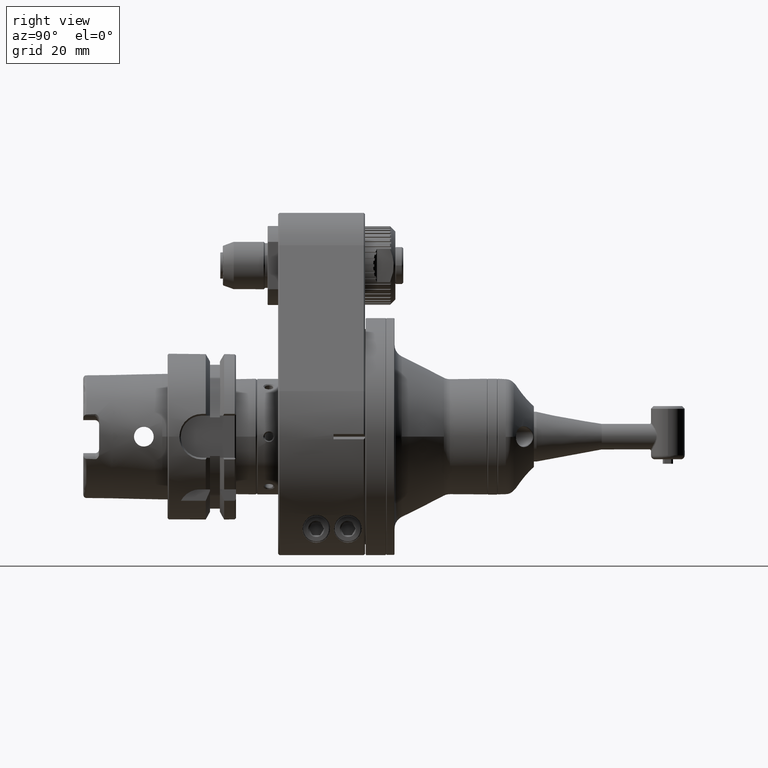
[diagram: clean part render]
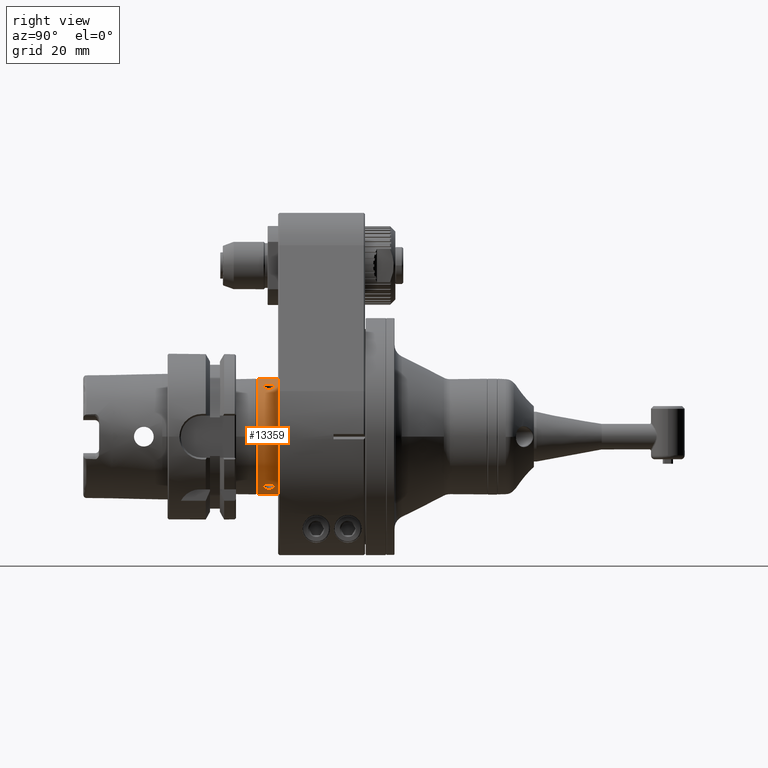
[diagram: same view with one face highlighted and labeled with its STEP entity id]
A machine part, right view. The second image highlights one B-rep face of the part: STEP entity #13359.
In plain terms, the highlighted cylindrical surface (bore or boss wall) has radius 22 mm, axis along (0, 1, 0).
Its self-contained STEP definition (entity closure, byte-faithful):
#243=B_SPLINE_CURVE_WITH_KNOTS('',3,(#28211,#28212,#28213,#28214,#28215,
#28216,#28217,#28218,#28219,#28220,#28221,#28222,#28223,#28224,#28225,#28226,
#28227,#28228),.UNSPECIFIED.,.F.,.F.,(4,2,2,2,2,2,2,2,4),(-1.23880658782033,
-1.16177950065768,-1.08475241349503,-1.00692867718014,-0.929104940865247,
-0.851281204550355,-0.773457468235463,-0.696430381072814,-0.619403293910165),
 .UNSPECIFIED.);
#244=B_SPLINE_CURVE_WITH_KNOTS('',3,(#28229,#28230,#28231,#28232,#28233,
#28234,#28235,#28236,#28237,#28238,#28239,#28240,#28241,#28242,#28243,#28244,
#28245,#28246),.UNSPECIFIED.,.F.,.F.,(4,2,2,2,2,2,2,2,4),(-0.619403293910165,
-0.542376206747516,-0.465349119584866,-0.387525383269974,-0.309701646955082,
-0.23187791064019,-0.154054174325298,-0.0770270871626491,0.),
 .UNSPECIFIED.);
#245=B_SPLINE_CURVE_WITH_KNOTS('',3,(#28249,#28250,#28251,#28252,#28253,
#28254,#28255,#28256,#28257,#28258,#28259,#28260,#28261,#28262,#28263,#28264,
#28265,#28266),.UNSPECIFIED.,.F.,.F.,(4,2,2,2,2,2,2,2,4),(-1.23880658782175,
-1.16177950065902,-1.08475241349629,-1.00692867718131,-0.929104940866334,
-0.85128120455135,-0.773457468236365,-0.696430381073621,-0.619403293910876),
 .UNSPECIFIED.);
#246=B_SPLINE_CURVE_WITH_KNOTS('',3,(#28267,#28268,#28269,#28270,#28271,
#28272,#28273,#28274,#28275,#28276,#28277,#28278,#28279,#28280,#28281,#28282,
#28283,#28284),.UNSPECIFIED.,.F.,.F.,(4,2,2,2,2,2,2,2,4),(-0.619403293910876,
-0.542376206748132,-0.465349119585387,-0.387525383270403,-0.309701646955418,
-0.231877910640439,-0.15405417432546,-0.0770270871627299,0.),
 .UNSPECIFIED.);
#247=B_SPLINE_CURVE_WITH_KNOTS('',3,(#28287,#28288,#28289,#28290,#28291,
#28292,#28293,#28294,#28295,#28296,#28297,#28298,#28299,#28300,#28301,#28302,
#28303,#28304),.UNSPECIFIED.,.F.,.F.,(4,2,2,2,2,2,2,2,4),(-1.23880658781887,
-1.1617795006563,-1.08475241349373,-1.00692867717893,-0.929104940864128,
-0.851281204549332,-0.773457468234535,-0.696430381071984,-0.619403293909433),
 .UNSPECIFIED.);
#248=B_SPLINE_CURVE_WITH_KNOTS('',3,(#28305,#28306,#28307,#28308,#28309,
#28310,#28311,#28312,#28313,#28314,#28315,#28316,#28317,#28318,#28319,#28320,
#28321,#28322),.UNSPECIFIED.,.F.,.F.,(4,2,2,2,2,2,2,2,4),(-0.619403293909433,
-0.542376206746882,-0.465349119584331,-0.387525383269534,-0.309701646954737,
-0.231877910639935,-0.154054174325132,-0.0770270871625662,0.),
 .UNSPECIFIED.);
#249=B_SPLINE_CURVE_WITH_KNOTS('',3,(#28325,#28326,#28327,#28328,#28329,
#28330,#28331,#28332,#28333,#28334,#28335,#28336,#28337,#28338,#28339,#28340,
#28341,#28342),.UNSPECIFIED.,.F.,.F.,(4,2,2,2,2,2,2,2,4),(-1.23880658782032,
-1.16177950065767,-1.08475241349502,-1.00692867718013,-0.929104940865237,
-0.851281204550345,-0.773457468235454,-0.696430381072806,-0.619403293910157),
 .UNSPECIFIED.);
#250=B_SPLINE_CURVE_WITH_KNOTS('',3,(#28343,#28344,#28345,#28346,#28347,
#28348,#28349,#28350,#28351,#28352,#28353,#28354,#28355,#28356,#28357,#28358,
#28359,#28360),.UNSPECIFIED.,.F.,.F.,(4,2,2,2,2,2,2,2,4),(-0.619403293910157,
-0.542376206747509,-0.465349119584861,-0.38752538326997,-0.309701646955079,
-0.231877910640188,-0.154054174325297,-0.0770270871626483,0.),
 .UNSPECIFIED.);
#251=B_SPLINE_CURVE_WITH_KNOTS('',3,(#28363,#28364,#28365,#28366,#28367,
#28368,#28369,#28370,#28371,#28372,#28373,#28374,#28375,#28376,#28377,#28378,
#28379,#28380),.UNSPECIFIED.,.F.,.F.,(4,2,2,2,2,2,2,2,4),(-1.23880658781886,
-1.16177950065629,-1.08475241349373,-1.00692867717893,-0.929104940864124,
-0.851281204549328,-0.773457468234531,-0.696430381071981,-0.61940329390943),
 .UNSPECIFIED.);
#252=B_SPLINE_CURVE_WITH_KNOTS('',3,(#28381,#28382,#28383,#28384,#28385,
#28386,#28387,#28388,#28389,#28390,#28391,#28392,#28393,#28394,#28395,#28396,
#28397,#28398),.UNSPECIFIED.,.F.,.F.,(4,2,2,2,2,2,2,2,4),(-0.61940329390943,
-0.542376206746879,-0.465349119584328,-0.387525383269532,-0.309701646954735,
-0.231877910639933,-0.154054174325132,-0.0770270871625658,0.),
 .UNSPECIFIED.);
#253=B_SPLINE_CURVE_WITH_KNOTS('',3,(#28401,#28402,#28403,#28404,#28405,
#28406,#28407,#28408,#28409,#28410,#28411,#28412,#28413,#28414,#28415,#28416,
#28417,#28418),.UNSPECIFIED.,.F.,.F.,(4,2,2,2,2,2,2,2,4),(-1.23880658782176,
-1.16177950065903,-1.0847524134963,-1.00692867718132,-0.929104940866339,
-0.851281204551354,-0.773457468236369,-0.696430381073624,-0.619403293910879),
 .UNSPECIFIED.);
#254=B_SPLINE_CURVE_WITH_KNOTS('',3,(#28419,#28420,#28421,#28422,#28423,
#28424,#28425,#28426,#28427,#28428,#28429,#28430,#28431,#28432,#28433,#28434,
#28435,#28436),.UNSPECIFIED.,.F.,.F.,(4,2,2,2,2,2,2,2,4),(-0.619403293910879,
-0.542376206748134,-0.465349119585389,-0.387525383270404,-0.309701646955419,
-0.231877910640439,-0.15405417432546,-0.0770270871627301,0.),
 .UNSPECIFIED.);
#1338=LINE('',#28205,#2313);
#2313=VECTOR('',#18233,22.);
#2608=CYLINDRICAL_SURFACE('',#14724,22.);
#2737=FACE_BOUND('',#4216,.T.);
#2738=FACE_BOUND('',#4217,.T.);
#2739=FACE_BOUND('',#4218,.T.);
#2740=FACE_BOUND('',#4219,.T.);
#2741=FACE_BOUND('',#4220,.T.);
#2742=FACE_BOUND('',#4221,.T.);
#3374=FACE_OUTER_BOUND('',#4215,.T.);
#4215=EDGE_LOOP('',(#11582,#11583,#11584,#11585,#11586));
#4216=EDGE_LOOP('',(#11587,#11588));
#4217=EDGE_LOOP('',(#11589,#11590));
#4218=EDGE_LOOP('',(#11591,#11592));
#4219=EDGE_LOOP('',(#11593,#11594));
#4220=EDGE_LOOP('',(#11595,#11596));
#4221=EDGE_LOOP('',(#11597,#11598));
#4915=CIRCLE('',#14643,22.);
#4956=CIRCLE('',#14725,22.);
#4957=CIRCLE('',#14726,22.);
#6071=VERTEX_POINT('',#27106);
#6132=VERTEX_POINT('',#28204);
#6133=VERTEX_POINT('',#28206);
#6134=VERTEX_POINT('',#28209);
#6135=VERTEX_POINT('',#28210);
#6136=VERTEX_POINT('',#28247);
#6137=VERTEX_POINT('',#28248);
#6138=VERTEX_POINT('',#28285);
#6139=VERTEX_POINT('',#28286);
#6140=VERTEX_POINT('',#28323);
#6141=VERTEX_POINT('',#28324);
#6142=VERTEX_POINT('',#28361);
#6143=VERTEX_POINT('',#28362);
#6144=VERTEX_POINT('',#28399);
#6145=VERTEX_POINT('',#28400);
#7887=EDGE_CURVE('',#6071,#6071,#4915,.T.);
#7983=EDGE_CURVE('',#6071,#6132,#1338,.T.);
#7984=EDGE_CURVE('',#6132,#6133,#4956,.T.);
#7985=EDGE_CURVE('',#6133,#6132,#4957,.T.);
#7986=EDGE_CURVE('',#6134,#6135,#243,.T.);
#7987=EDGE_CURVE('',#6135,#6134,#244,.T.);
#7988=EDGE_CURVE('',#6136,#6137,#245,.T.);
#7989=EDGE_CURVE('',#6137,#6136,#246,.T.);
#7990=EDGE_CURVE('',#6138,#6139,#247,.T.);
#7991=EDGE_CURVE('',#6139,#6138,#248,.T.);
#7992=EDGE_CURVE('',#6140,#6141,#249,.T.);
#7993=EDGE_CURVE('',#6141,#6140,#250,.T.);
#7994=EDGE_CURVE('',#6142,#6143,#251,.T.);
#7995=EDGE_CURVE('',#6143,#6142,#252,.T.);
#7996=EDGE_CURVE('',#6144,#6145,#253,.T.);
#7997=EDGE_CURVE('',#6145,#6144,#254,.T.);
#11582=ORIENTED_EDGE('',*,*,#7887,.F.);
#11583=ORIENTED_EDGE('',*,*,#7983,.T.);
#11584=ORIENTED_EDGE('',*,*,#7984,.T.);
#11585=ORIENTED_EDGE('',*,*,#7985,.T.);
#11586=ORIENTED_EDGE('',*,*,#7983,.F.);
#11587=ORIENTED_EDGE('',*,*,#7986,.F.);
#11588=ORIENTED_EDGE('',*,*,#7987,.F.);
#11589=ORIENTED_EDGE('',*,*,#7988,.F.);
#11590=ORIENTED_EDGE('',*,*,#7989,.F.);
#11591=ORIENTED_EDGE('',*,*,#7990,.F.);
#11592=ORIENTED_EDGE('',*,*,#7991,.F.);
#11593=ORIENTED_EDGE('',*,*,#7992,.F.);
#11594=ORIENTED_EDGE('',*,*,#7993,.F.);
#11595=ORIENTED_EDGE('',*,*,#7994,.F.);
#11596=ORIENTED_EDGE('',*,*,#7995,.F.);
#11597=ORIENTED_EDGE('',*,*,#7996,.F.);
#11598=ORIENTED_EDGE('',*,*,#7997,.F.);
#13359=ADVANCED_FACE('',(#3374,#2737,#2738,#2739,#2740,#2741,#2742),#2608,
 .T.);
#14643=AXIS2_PLACEMENT_3D('',#27107,#18029,#18030);
#14724=AXIS2_PLACEMENT_3D('',#28203,#18231,#18232);
#14725=AXIS2_PLACEMENT_3D('',#28207,#18234,#18235);
#14726=AXIS2_PLACEMENT_3D('',#28208,#18236,#18237);
#18029=DIRECTION('center_axis',(0.,1.,0.));
#18030=DIRECTION('ref_axis',(0.866025403784429,0.,0.500000000000017));
#18231=DIRECTION('center_axis',(0.,1.,0.));
#18232=DIRECTION('ref_axis',(0.866025403784429,0.,0.500000000000017));
#18233=DIRECTION('',(0.,-1.,0.));
#18234=DIRECTION('center_axis',(0.,1.,0.));
#18235=DIRECTION('ref_axis',(0.866025403784429,0.,0.500000000000017));
#18236=DIRECTION('center_axis',(0.,1.,0.));
#18237=DIRECTION('ref_axis',(0.866025403784429,0.,0.500000000000017));
#27106=CARTESIAN_POINT('',(-19.0525588832575,-8.,-11.0000000000004));
#27107=CARTESIAN_POINT('Origin',(-1.091779395535E-14,-8.,0.));
#28203=CARTESIAN_POINT('Origin',(-1.19893599046E-14,-16.75,0.));
#28204=CARTESIAN_POINT('',(-19.0525588832575,-15.80000880155,-11.0000000000004));
#28205=CARTESIAN_POINT('',(-19.0525588832575,-16.75,-11.0000000000004));
#28206=CARTESIAN_POINT('',(19.05255888326,-15.80000880155,11.));
#28207=CARTESIAN_POINT('Origin',(-1.187301953656E-14,-15.80000880155,0.));
#28208=CARTESIAN_POINT('Origin',(-1.187301953656E-14,-15.80000880155,0.));
#28209=CARTESIAN_POINT('',(-21.90815621239,-11.5,-2.008156212393));
#28210=CARTESIAN_POINT('',(-21.9081562123931,-11.5,2.00815621239513));
#28211=CARTESIAN_POINT('Ctrl Pts',(-21.9081562123931,-11.5,-2.00815621239512));
#28212=CARTESIAN_POINT('Ctrl Pts',(-21.9081562123931,-11.7567569572088,
-2.00815621239512));
#28213=CARTESIAN_POINT('Ctrl Pts',(-21.9127106482679,-12.0317418716678,
-1.96033448796461));
#28214=CARTESIAN_POINT('Ctrl Pts',(-21.929464605579,-12.5416340439563,-1.76306033544302));
#28215=CARTESIAN_POINT('Ctrl Pts',(-21.9414458850126,-12.7765352915585,
-1.61357389995943));
#28216=CARTESIAN_POINT('Ctrl Pts',(-21.9644709021388,-13.1540082290924,
-1.26226934337229));
#28217=CARTESIAN_POINT('Ctrl Pts',(-21.9770299134931,-13.3210366099234,
-1.03589907620425));
#28218=CARTESIAN_POINT('Ctrl Pts',(-21.9949367380513,-13.5440839504429,
-0.534498578998472));
#28219=CARTESIAN_POINT('Ctrl Pts',(-22.,-13.600000000002,-0.259412454382973));
#28220=CARTESIAN_POINT('Ctrl Pts',(-22.,-13.600000000002,0.259412454382974));
#28221=CARTESIAN_POINT('Ctrl Pts',(-21.9949367380513,-13.5440839504429,
0.534498578998472));
#28222=CARTESIAN_POINT('Ctrl Pts',(-21.9770299134931,-13.3210366099234,
1.03589907620424));
#28223=CARTESIAN_POINT('Ctrl Pts',(-21.9644709021388,-13.1540082290924,
1.26226934337229));
#28224=CARTESIAN_POINT('Ctrl Pts',(-21.9414458850126,-12.7765352915585,
1.61357389995943));
#28225=CARTESIAN_POINT('Ctrl Pts',(-21.929464605579,-12.5416340439563,1.76306033544302));
#28226=CARTESIAN_POINT('Ctrl Pts',(-21.9127106482679,-12.0317418716678,
1.96033448796461));
#28227=CARTESIAN_POINT('Ctrl Pts',(-21.9081562123931,-11.7567569572088,
2.00815621239513));
#28228=CARTESIAN_POINT('Ctrl Pts',(-21.9081562123931,-11.5,2.00815621239513));
#28229=CARTESIAN_POINT('Ctrl Pts',(-21.9081562123931,-11.5,2.00815621239513));
#28230=CARTESIAN_POINT('Ctrl Pts',(-21.9081562123931,-11.2432430427912,
2.00815621239513));
#28231=CARTESIAN_POINT('Ctrl Pts',(-21.9127106482679,-10.9682581283322,
1.96033448796461));
#28232=CARTESIAN_POINT('Ctrl Pts',(-21.929464605579,-10.4583659560437,1.76306033544302));
#28233=CARTESIAN_POINT('Ctrl Pts',(-21.9414458850126,-10.2234647084415,
1.61357389995943));
#28234=CARTESIAN_POINT('Ctrl Pts',(-21.9644709021388,-9.84599177090757,
1.26226934337229));
#28235=CARTESIAN_POINT('Ctrl Pts',(-21.9770299134931,-9.67896339007665,
1.03589907620425));
#28236=CARTESIAN_POINT('Ctrl Pts',(-21.9949367380513,-9.45591604955709,
0.534498578998473));
#28237=CARTESIAN_POINT('Ctrl Pts',(-22.,-9.39999999999799,0.259412454382973));
#28238=CARTESIAN_POINT('Ctrl Pts',(-22.,-9.39999999999799,-0.259412454382974));
#28239=CARTESIAN_POINT('Ctrl Pts',(-21.9949367380513,-9.45591604955709,
-0.534498578998474));
#28240=CARTESIAN_POINT('Ctrl Pts',(-21.9770299134931,-9.67896339007665,
-1.03589907620425));
#28241=CARTESIAN_POINT('Ctrl Pts',(-21.9644709021388,-9.84599177090757,
-1.26226934337229));
#28242=CARTESIAN_POINT('Ctrl Pts',(-21.9414458850126,-10.2234647084415,
-1.61357389995943));
#28243=CARTESIAN_POINT('Ctrl Pts',(-21.929464605579,-10.4583659560437,-1.76306033544302));
#28244=CARTESIAN_POINT('Ctrl Pts',(-21.9127106482679,-10.9682581283322,
-1.96033448796461));
#28245=CARTESIAN_POINT('Ctrl Pts',(-21.9081562123931,-11.2432430427912,
-2.00815621239513));
#28246=CARTESIAN_POINT('Ctrl Pts',(-21.9081562123931,-11.5,-2.00815621239513));
#28247=CARTESIAN_POINT('',(9.214963811497,-11.5,19.97709793621));
#28248=CARTESIAN_POINT('',(12.6931924008986,-11.5,17.9689417238125));
#28249=CARTESIAN_POINT('Ctrl Pts',(9.21496381149112,-11.5,19.9770979362096));
#28250=CARTESIAN_POINT('Ctrl Pts',(9.21496381149112,-11.7567569572091,19.9770979362096));
#28251=CARTESIAN_POINT('Ctrl Pts',(9.25865585763816,-12.0317418716684,19.9571313311618));
#28252=CARTESIAN_POINT('Ctrl Pts',(9.43787726388764,-12.5416340439574,19.8730036075463));
#28253=CARTESIAN_POINT('Ctrl Pts',(9.57332695425452,-12.7765352915599,19.8086364821637));
#28254=CARTESIAN_POINT('Ctrl Pts',(9.88907813328764,-13.1540082290942,19.6529244536239));
#28255=CARTESIAN_POINT('Ctrl Pts',(10.091400040994,-13.3210366099254,19.5506157429191));
#28256=CARTESIAN_POINT('Ctrl Pts',(10.534579021324,-13.5440839504453,19.3154232592846));
#28257=CARTESIAN_POINT('Ctrl Pts',(10.7753422244443,-13.6000000000044,19.1822651104503));
#28258=CARTESIAN_POINT('Ctrl Pts',(11.2246577755522,-13.6000000000045,18.922852656067));
#28259=CARTESIAN_POINT('Ctrl Pts',(11.4603577167238,-13.5440839504454,18.7809246802856));
#28260=CARTESIAN_POINT('Ctrl Pts',(11.8856298724956,-13.3210366099256,18.5147166667138));
#28261=CARTESIAN_POINT('Ctrl Pts',(12.0753927688477,-13.1540082290945,18.3906551102504));
#28262=CARTESIAN_POINT('Ctrl Pts',(12.3681189307546,-12.7765352915601,18.1950625822027));
#28263=CARTESIAN_POINT('Ctrl Pts',(12.491587341688,-12.5416340439576,18.1099432721015));
#28264=CARTESIAN_POINT('Ctrl Pts',(12.6540547906264,-12.0317418716685,17.9967968431953));
#28265=CARTESIAN_POINT('Ctrl Pts',(12.6931924008986,-11.7567569572091,17.9689417238125));
#28266=CARTESIAN_POINT('Ctrl Pts',(12.6931924008986,-11.5,17.9689417238125));
#28267=CARTESIAN_POINT('Ctrl Pts',(12.6931924008986,-11.5,17.9689417238125));
#28268=CARTESIAN_POINT('Ctrl Pts',(12.6931924008986,-11.2432430427908,17.9689417238125));
#28269=CARTESIAN_POINT('Ctrl Pts',(12.6540547906264,-10.9682581283315,17.9967968431953));
#28270=CARTESIAN_POINT('Ctrl Pts',(12.491587341688,-10.4583659560424,18.1099432721015));
#28271=CARTESIAN_POINT('Ctrl Pts',(12.3681189307546,-10.2234647084399,18.1950625822027));
#28272=CARTESIAN_POINT('Ctrl Pts',(12.0753927688477,-9.84599177090555,18.3906551102504));
#28273=CARTESIAN_POINT('Ctrl Pts',(11.8856298724956,-9.67896339007444,18.5147166667138));
#28274=CARTESIAN_POINT('Ctrl Pts',(11.4603577167238,-9.45591604955464,18.7809246802856));
#28275=CARTESIAN_POINT('Ctrl Pts',(11.2246577755522,-9.3999999999955,18.922852656067));
#28276=CARTESIAN_POINT('Ctrl Pts',(10.7753422244443,-9.39999999999556,19.1822651104503));
#28277=CARTESIAN_POINT('Ctrl Pts',(10.534579021324,-9.45591604955475,19.3154232592846));
#28278=CARTESIAN_POINT('Ctrl Pts',(10.091400040994,-9.67896339007462,19.5506157429191));
#28279=CARTESIAN_POINT('Ctrl Pts',(9.88907813328764,-9.84599177090576,19.6529244536239));
#28280=CARTESIAN_POINT('Ctrl Pts',(9.57332695425452,-10.2234647084401,19.8086364821637));
#28281=CARTESIAN_POINT('Ctrl Pts',(9.43787726388764,-10.4583659560426,19.8730036075463));
#28282=CARTESIAN_POINT('Ctrl Pts',(9.25865585763816,-10.9682581283316,19.9571313311618));
#28283=CARTESIAN_POINT('Ctrl Pts',(9.21496381149112,-11.2432430427909,19.9770979362096));
#28284=CARTESIAN_POINT('Ctrl Pts',(9.21496381149112,-11.5,19.9770979362096));
#28285=CARTESIAN_POINT('',(-12.6931924009,-11.5,17.96894172381));
#28286=CARTESIAN_POINT('',(-9.21496381149529,-11.5,19.9770979362077));
#28287=CARTESIAN_POINT('Ctrl Pts',(-12.6931924008949,-11.5,17.9689417238151));
#28288=CARTESIAN_POINT('Ctrl Pts',(-12.6931924008949,-11.7567569572086,
17.9689417238151));
#28289=CARTESIAN_POINT('Ctrl Pts',(-12.6540547906227,-12.0317418716672,
17.9967968431978));
#28290=CARTESIAN_POINT('Ctrl Pts',(-12.4915873416846,-12.5416340439552,
18.1099432721038));
#28291=CARTESIAN_POINT('Ctrl Pts',(-12.3681189307515,-12.7765352915571,
18.1950625822048));
#28292=CARTESIAN_POINT('Ctrl Pts',(-12.0753927688452,-13.1540082290906,
18.390655110252));
#28293=CARTESIAN_POINT('Ctrl Pts',(-11.8856298724936,-13.3210366099213,
18.5147166667151));
#28294=CARTESIAN_POINT('Ctrl Pts',(-11.4603577167228,-13.5440839504405,
18.7809246802862));
#28295=CARTESIAN_POINT('Ctrl Pts',(-11.2246577755517,-13.5999999999995,
18.9228526560674));
#28296=CARTESIAN_POINT('Ctrl Pts',(-10.7753422244448,-13.5999999999995,
19.18226511045));
#28297=CARTESIAN_POINT('Ctrl Pts',(-10.5345790213251,-13.5440839504404,
19.315423259284));
#28298=CARTESIAN_POINT('Ctrl Pts',(-10.0914000409962,-13.3210366099211,
19.550615742918));
#28299=CARTESIAN_POINT('Ctrl Pts',(-9.88907813329026,-13.1540082290904,
19.6529244536226));
#28300=CARTESIAN_POINT('Ctrl Pts',(-9.57332695425787,-12.7765352915569,
19.8086364821621));
#28301=CARTESIAN_POINT('Ctrl Pts',(-9.4378772638913,-12.541634043955,19.8730036075446));
#28302=CARTESIAN_POINT('Ctrl Pts',(-9.25865585764223,-12.0317418716671,
19.9571313311599));
#28303=CARTESIAN_POINT('Ctrl Pts',(-9.21496381149529,-11.7567569572085,
19.9770979362077));
#28304=CARTESIAN_POINT('Ctrl Pts',(-9.21496381149529,-11.5,19.9770979362077));
#28305=CARTESIAN_POINT('Ctrl Pts',(-9.21496381149529,-11.5,19.9770979362077));
#28306=CARTESIAN_POINT('Ctrl Pts',(-9.21496381149529,-11.2432430427915,
19.9770979362077));
#28307=CARTESIAN_POINT('Ctrl Pts',(-9.25865585764223,-10.9682581283329,
19.9571313311599));
#28308=CARTESIAN_POINT('Ctrl Pts',(-9.4378772638913,-10.458365956045,19.8730036075446));
#28309=CARTESIAN_POINT('Ctrl Pts',(-9.57332695425786,-10.2234647084431,
19.8086364821621));
#28310=CARTESIAN_POINT('Ctrl Pts',(-9.88907813329026,-9.84599177090965,
19.6529244536226));
#28311=CARTESIAN_POINT('Ctrl Pts',(-10.0914000409962,-9.67896339007892,
19.550615742918));
#28312=CARTESIAN_POINT('Ctrl Pts',(-10.5345790213251,-9.4559160495596,19.315423259284));
#28313=CARTESIAN_POINT('Ctrl Pts',(-10.7753422244448,-9.40000000000055,
19.18226511045));
#28314=CARTESIAN_POINT('Ctrl Pts',(-11.2246577755517,-9.40000000000049,
18.9228526560674));
#28315=CARTESIAN_POINT('Ctrl Pts',(-11.4603577167228,-9.45591604955949,
18.7809246802862));
#28316=CARTESIAN_POINT('Ctrl Pts',(-11.8856298724936,-9.67896339007873,
18.5147166667151));
#28317=CARTESIAN_POINT('Ctrl Pts',(-12.0753927688452,-9.84599177090943,
18.390655110252));
#28318=CARTESIAN_POINT('Ctrl Pts',(-12.3681189307515,-10.2234647084429,
18.1950625822048));
#28319=CARTESIAN_POINT('Ctrl Pts',(-12.4915873416846,-10.4583659560448,
18.1099432721038));
#28320=CARTESIAN_POINT('Ctrl Pts',(-12.6540547906227,-10.9682581283328,
17.9967968431978));
#28321=CARTESIAN_POINT('Ctrl Pts',(-12.6931924008949,-11.2432430427914,
17.9689417238151));
#28322=CARTESIAN_POINT('Ctrl Pts',(-12.6931924008949,-11.5,17.9689417238151));
#28323=CARTESIAN_POINT('',(21.90815621239,-11.5,2.008156212393));
#28324=CARTESIAN_POINT('',(21.9081562123931,-11.5,-2.0081562123951));
#28325=CARTESIAN_POINT('Ctrl Pts',(21.9081562123931,-11.5,2.0081562123951));
#28326=CARTESIAN_POINT('Ctrl Pts',(21.9081562123931,-11.7567569572088,2.0081562123951));
#28327=CARTESIAN_POINT('Ctrl Pts',(21.9127106482679,-12.0317418716678,1.96033448796459));
#28328=CARTESIAN_POINT('Ctrl Pts',(21.929464605579,-12.5416340439563,1.763060335443));
#28329=CARTESIAN_POINT('Ctrl Pts',(21.9414458850125,-12.7765352915585,1.61357389995941));
#28330=CARTESIAN_POINT('Ctrl Pts',(21.9644709021388,-13.1540082290924,1.26226934337228));
#28331=CARTESIAN_POINT('Ctrl Pts',(21.9770299134931,-13.3210366099233,1.03589907620424));
#28332=CARTESIAN_POINT('Ctrl Pts',(21.9949367380513,-13.5440839504429,0.534498578998467));
#28333=CARTESIAN_POINT('Ctrl Pts',(22.,-13.600000000002,0.259412454382971));
#28334=CARTESIAN_POINT('Ctrl Pts',(22.,-13.600000000002,-0.259412454382971));
#28335=CARTESIAN_POINT('Ctrl Pts',(21.9949367380513,-13.5440839504429,-0.534498578998469));
#28336=CARTESIAN_POINT('Ctrl Pts',(21.9770299134931,-13.3210366099233,-1.03589907620424));
#28337=CARTESIAN_POINT('Ctrl Pts',(21.9644709021388,-13.1540082290924,-1.26226934337228));
#28338=CARTESIAN_POINT('Ctrl Pts',(21.9414458850125,-12.7765352915585,-1.61357389995941));
#28339=CARTESIAN_POINT('Ctrl Pts',(21.929464605579,-12.5416340439563,-1.763060335443));
#28340=CARTESIAN_POINT('Ctrl Pts',(21.9127106482679,-12.0317418716678,-1.96033448796459));
#28341=CARTESIAN_POINT('Ctrl Pts',(21.9081562123931,-11.7567569572088,-2.0081562123951));
#28342=CARTESIAN_POINT('Ctrl Pts',(21.9081562123931,-11.5,-2.0081562123951));
#28343=CARTESIAN_POINT('Ctrl Pts',(21.9081562123931,-11.5,-2.0081562123951));
#28344=CARTESIAN_POINT('Ctrl Pts',(21.9081562123931,-11.2432430427912,-2.0081562123951));
#28345=CARTESIAN_POINT('Ctrl Pts',(21.9127106482679,-10.9682581283322,-1.96033448796458));
#28346=CARTESIAN_POINT('Ctrl Pts',(21.929464605579,-10.4583659560437,-1.763060335443));
#28347=CARTESIAN_POINT('Ctrl Pts',(21.9414458850125,-10.2234647084415,-1.61357389995941));
#28348=CARTESIAN_POINT('Ctrl Pts',(21.9644709021388,-9.84599177090759,-1.26226934337228));
#28349=CARTESIAN_POINT('Ctrl Pts',(21.9770299134931,-9.67896339007667,-1.03589907620423));
#28350=CARTESIAN_POINT('Ctrl Pts',(21.9949367380513,-9.45591604955711,-0.534498578998466));
#28351=CARTESIAN_POINT('Ctrl Pts',(22.,-9.39999999999802,-0.25941245438297));
#28352=CARTESIAN_POINT('Ctrl Pts',(22.,-9.39999999999802,0.25941245438297));
#28353=CARTESIAN_POINT('Ctrl Pts',(21.9949367380513,-9.45591604955711,0.534498578998466));
#28354=CARTESIAN_POINT('Ctrl Pts',(21.9770299134931,-9.67896339007667,1.03589907620423));
#28355=CARTESIAN_POINT('Ctrl Pts',(21.9644709021388,-9.84599177090759,1.26226934337228));
#28356=CARTESIAN_POINT('Ctrl Pts',(21.9414458850125,-10.2234647084415,1.61357389995941));
#28357=CARTESIAN_POINT('Ctrl Pts',(21.929464605579,-10.4583659560437,1.763060335443));
#28358=CARTESIAN_POINT('Ctrl Pts',(21.9127106482679,-10.9682581283322,1.96033448796458));
#28359=CARTESIAN_POINT('Ctrl Pts',(21.9081562123931,-11.2432430427912,2.0081562123951));
#28360=CARTESIAN_POINT('Ctrl Pts',(21.9081562123931,-11.5,2.0081562123951));
#28361=CARTESIAN_POINT('',(12.6931924009,-11.5,-17.96894172381));
#28362=CARTESIAN_POINT('',(9.21496381149529,-11.5,-19.9770979362076));
#28363=CARTESIAN_POINT('Ctrl Pts',(12.6931924008949,-11.5,-17.9689417238151));
#28364=CARTESIAN_POINT('Ctrl Pts',(12.6931924008949,-11.7567569572086,-17.9689417238151));
#28365=CARTESIAN_POINT('Ctrl Pts',(12.6540547906227,-12.0317418716672,-17.9967968431978));
#28366=CARTESIAN_POINT('Ctrl Pts',(12.4915873416846,-12.5416340439552,-18.1099432721038));
#28367=CARTESIAN_POINT('Ctrl Pts',(12.3681189307515,-12.7765352915571,-18.1950625822048));
#28368=CARTESIAN_POINT('Ctrl Pts',(12.0753927688452,-13.1540082290906,-18.390655110252));
#28369=CARTESIAN_POINT('Ctrl Pts',(11.8856298724936,-13.3210366099213,-18.5147166667151));
#28370=CARTESIAN_POINT('Ctrl Pts',(11.4603577167228,-13.5440839504405,-18.7809246802862));
#28371=CARTESIAN_POINT('Ctrl Pts',(11.2246577755517,-13.5999999999995,-18.9228526560673));
#28372=CARTESIAN_POINT('Ctrl Pts',(10.7753422244448,-13.5999999999994,-19.18226511045));
#28373=CARTESIAN_POINT('Ctrl Pts',(10.5345790213251,-13.5440839504404,-19.315423259284));
#28374=CARTESIAN_POINT('Ctrl Pts',(10.0914000409962,-13.3210366099211,-19.550615742918));
#28375=CARTESIAN_POINT('Ctrl Pts',(9.88907813329026,-13.1540082290903,-19.6529244536226));
#28376=CARTESIAN_POINT('Ctrl Pts',(9.57332695425787,-12.7765352915569,-19.8086364821621));
#28377=CARTESIAN_POINT('Ctrl Pts',(9.4378772638913,-12.541634043955,-19.8730036075445));
#28378=CARTESIAN_POINT('Ctrl Pts',(9.25865585764224,-12.0317418716671,-19.9571313311599));
#28379=CARTESIAN_POINT('Ctrl Pts',(9.21496381149529,-11.7567569572085,-19.9770979362076));
#28380=CARTESIAN_POINT('Ctrl Pts',(9.21496381149529,-11.5,-19.9770979362076));
#28381=CARTESIAN_POINT('Ctrl Pts',(9.21496381149529,-11.5,-19.9770979362076));
#28382=CARTESIAN_POINT('Ctrl Pts',(9.21496381149529,-11.2432430427915,-19.9770979362076));
#28383=CARTESIAN_POINT('Ctrl Pts',(9.25865585764224,-10.9682581283329,-19.9571313311599));
#28384=CARTESIAN_POINT('Ctrl Pts',(9.4378772638913,-10.458365956045,-19.8730036075445));
#28385=CARTESIAN_POINT('Ctrl Pts',(9.57332695425787,-10.2234647084431,-19.8086364821621));
#28386=CARTESIAN_POINT('Ctrl Pts',(9.88907813329026,-9.84599177090966,-19.6529244536226));
#28387=CARTESIAN_POINT('Ctrl Pts',(10.0914000409962,-9.67896339007893,-19.550615742918));
#28388=CARTESIAN_POINT('Ctrl Pts',(10.5345790213251,-9.45591604955961,-19.315423259284));
#28389=CARTESIAN_POINT('Ctrl Pts',(10.7753422244448,-9.40000000000056,-19.18226511045));
#28390=CARTESIAN_POINT('Ctrl Pts',(11.2246577755517,-9.4000000000005,-18.9228526560673));
#28391=CARTESIAN_POINT('Ctrl Pts',(11.4603577167228,-9.4559160495595,-18.7809246802862));
#28392=CARTESIAN_POINT('Ctrl Pts',(11.8856298724936,-9.67896339007874,-18.5147166667151));
#28393=CARTESIAN_POINT('Ctrl Pts',(12.0753927688452,-9.84599177090944,-18.390655110252));
#28394=CARTESIAN_POINT('Ctrl Pts',(12.3681189307515,-10.2234647084429,-18.1950625822048));
#28395=CARTESIAN_POINT('Ctrl Pts',(12.4915873416846,-10.4583659560448,-18.1099432721038));
#28396=CARTESIAN_POINT('Ctrl Pts',(12.6540547906227,-10.9682581283328,-17.9967968431978));
#28397=CARTESIAN_POINT('Ctrl Pts',(12.6931924008949,-11.2432430427914,-17.9689417238151));
#28398=CARTESIAN_POINT('Ctrl Pts',(12.6931924008949,-11.5,-17.9689417238151));
#28399=CARTESIAN_POINT('',(-9.214963811497,-11.5,-19.97709793621));
#28400=CARTESIAN_POINT('',(-12.6931924008986,-11.5,-17.9689417238125));
#28401=CARTESIAN_POINT('Ctrl Pts',(-9.21496381149112,-11.5,-19.9770979362096));
#28402=CARTESIAN_POINT('Ctrl Pts',(-9.21496381149112,-11.7567569572091,
-19.9770979362096));
#28403=CARTESIAN_POINT('Ctrl Pts',(-9.25865585763816,-12.0317418716684,
-19.9571313311618));
#28404=CARTESIAN_POINT('Ctrl Pts',(-9.43787726388764,-12.5416340439574,
-19.8730036075463));
#28405=CARTESIAN_POINT('Ctrl Pts',(-9.57332695425451,-12.7765352915599,
-19.8086364821637));
#28406=CARTESIAN_POINT('Ctrl Pts',(-9.88907813328765,-13.1540082290943,
-19.652924453624));
#28407=CARTESIAN_POINT('Ctrl Pts',(-10.091400040994,-13.3210366099254,-19.5506157429191));
#28408=CARTESIAN_POINT('Ctrl Pts',(-10.534579021324,-13.5440839504453,-19.3154232592846));
#28409=CARTESIAN_POINT('Ctrl Pts',(-10.7753422244443,-13.6000000000045,
-19.1822651104503));
#28410=CARTESIAN_POINT('Ctrl Pts',(-11.2246577755523,-13.6000000000045,
-18.9228526560671));
#28411=CARTESIAN_POINT('Ctrl Pts',(-11.4603577167239,-13.5440839504454,
-18.7809246802856));
#28412=CARTESIAN_POINT('Ctrl Pts',(-11.8856298724956,-13.3210366099256,
-18.5147166667138));
#28413=CARTESIAN_POINT('Ctrl Pts',(-12.0753927688477,-13.1540082290945,
-18.3906551102504));
#28414=CARTESIAN_POINT('Ctrl Pts',(-12.3681189307546,-12.7765352915601,
-18.1950625822027));
#28415=CARTESIAN_POINT('Ctrl Pts',(-12.491587341688,-12.5416340439576,-18.1099432721015));
#28416=CARTESIAN_POINT('Ctrl Pts',(-12.6540547906264,-12.0317418716685,
-17.9967968431953));
#28417=CARTESIAN_POINT('Ctrl Pts',(-12.6931924008986,-11.7567569572092,
-17.9689417238125));
#28418=CARTESIAN_POINT('Ctrl Pts',(-12.6931924008986,-11.5,-17.9689417238125));
#28419=CARTESIAN_POINT('Ctrl Pts',(-12.6931924008986,-11.5,-17.9689417238125));
#28420=CARTESIAN_POINT('Ctrl Pts',(-12.6931924008986,-11.2432430427909,
-17.9689417238125));
#28421=CARTESIAN_POINT('Ctrl Pts',(-12.6540547906264,-10.9682581283315,
-17.9967968431953));
#28422=CARTESIAN_POINT('Ctrl Pts',(-12.491587341688,-10.4583659560424,-18.1099432721015));
#28423=CARTESIAN_POINT('Ctrl Pts',(-12.3681189307546,-10.2234647084399,
-18.1950625822027));
#28424=CARTESIAN_POINT('Ctrl Pts',(-12.0753927688477,-9.84599177090553,
-18.3906551102504));
#28425=CARTESIAN_POINT('Ctrl Pts',(-11.8856298724956,-9.67896339007442,
-18.5147166667138));
#28426=CARTESIAN_POINT('Ctrl Pts',(-11.4603577167239,-9.45591604955462,
-18.7809246802856));
#28427=CARTESIAN_POINT('Ctrl Pts',(-11.2246577755523,-9.39999999999549,
-18.9228526560671));
#28428=CARTESIAN_POINT('Ctrl Pts',(-10.7753422244443,-9.39999999999555,
-19.1822651104503));
#28429=CARTESIAN_POINT('Ctrl Pts',(-10.534579021324,-9.45591604955474,-19.3154232592846));
#28430=CARTESIAN_POINT('Ctrl Pts',(-10.091400040994,-9.67896339007462,-19.5506157429191));
#28431=CARTESIAN_POINT('Ctrl Pts',(-9.88907813328765,-9.84599177090575,
-19.652924453624));
#28432=CARTESIAN_POINT('Ctrl Pts',(-9.57332695425452,-10.2234647084401,
-19.8086364821637));
#28433=CARTESIAN_POINT('Ctrl Pts',(-9.43787726388764,-10.4583659560426,
-19.8730036075463));
#28434=CARTESIAN_POINT('Ctrl Pts',(-9.25865585763816,-10.9682581283316,
-19.9571313311618));
#28435=CARTESIAN_POINT('Ctrl Pts',(-9.21496381149112,-11.2432430427909,
-19.9770979362096));
#28436=CARTESIAN_POINT('Ctrl Pts',(-9.21496381149112,-11.5,-19.9770979362096));